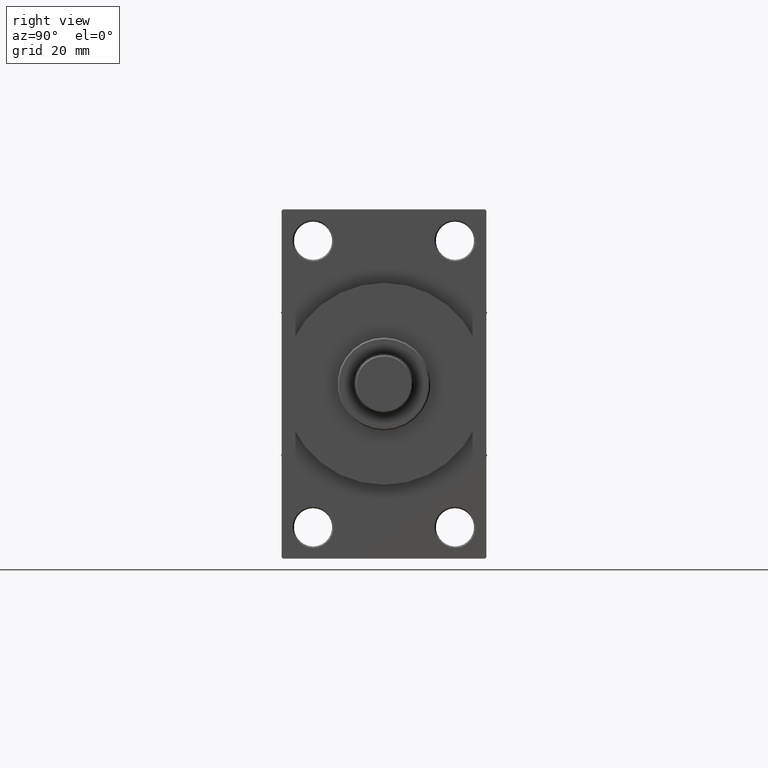
[diagram: clean part render]
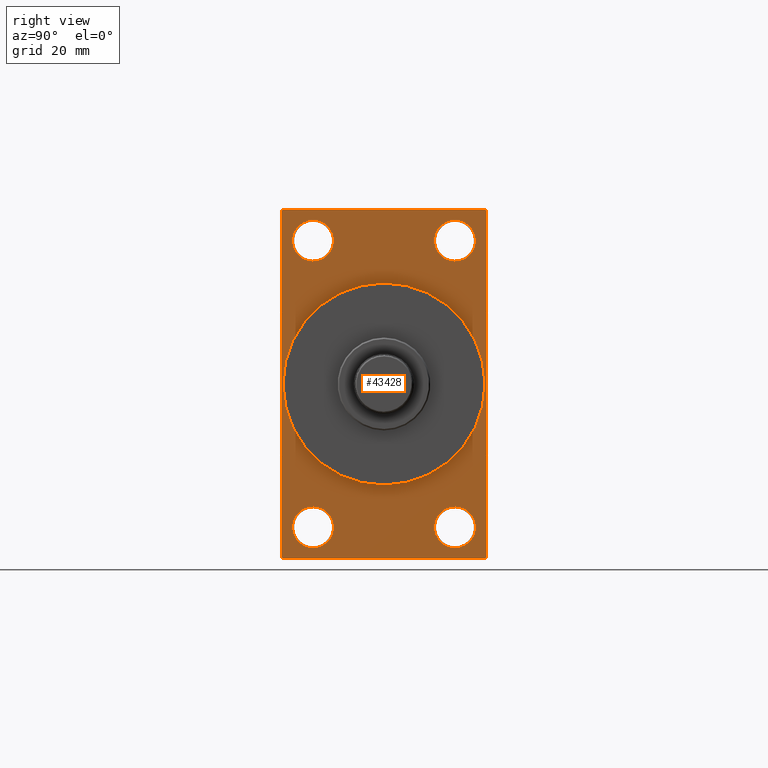
[diagram: same view with one face highlighted and labeled with its STEP entity id]
A machine part, right view. The second image highlights one B-rep face of the part: STEP entity #43428.
In plain terms, the highlighted planar face has unit normal (-1, 0, 0).
Its self-contained STEP definition (entity closure, byte-faithful):
#221 = DIRECTION ( 'NONE',  ( 0.000000000000000000, 0.000000000000000000, -1.000000000000000000 ) ) ;
#607 = ORIENTED_EDGE ( 'NONE', *, *, #24839, .T. ) ;
#777 = FACE_BOUND ( 'NONE', #45723, .T. ) ;
#983 = CARTESIAN_POINT ( 'NONE',  ( 138.0000000000000000, -25.99999999999999645, 44.99999999999999289 ) ) ;
#1010 = DIRECTION ( 'NONE',  ( -1.000000000000000000, 0.000000000000000000, -0.000000000000000000 ) ) ;
#1123 = VERTEX_POINT ( 'NONE', #1602 ) ;
#1602 = CARTESIAN_POINT ( 'NONE',  ( 138.0000000000000000, -37.49999999999999289, -63.49999999999997158 ) ) ;
#1700 = LINE ( 'NONE', #16366, #25528 ) ;
#1811 = AXIS2_PLACEMENT_3D ( 'NONE', #29979, #20075, #26359 ) ;
#2592 = VERTEX_POINT ( 'NONE', #46203 ) ;
#3135 = CARTESIAN_POINT ( 'NONE',  ( 138.0000000000000000, 26.00000000000000000, 44.99999999999998579 ) ) ;
#3863 = VERTEX_POINT ( 'NONE', #20117 ) ;
#4159 = DIRECTION ( 'NONE',  ( -1.000000000000000000, 0.000000000000000000, -0.000000000000000000 ) ) ;
#4589 = DIRECTION ( 'NONE',  ( -1.000000000000000000, 0.000000000000000000, -0.000000000000000000 ) ) ;
#4620 = FACE_BOUND ( 'NONE', #17722, .T. ) ;
#4820 = DIRECTION ( 'NONE',  ( 0.000000000000000000, 0.000000000000000000, 1.000000000000000000 ) ) ;
#5027 = EDGE_CURVE ( 'NONE', #14493, #10765, #33588, .T. ) ;
#5164 = EDGE_CURVE ( 'NONE', #11677, #41277, #12487, .T. ) ;
#5447 = EDGE_CURVE ( 'NONE', #22201, #14952, #34792, .T. ) ;
#5577 = AXIS2_PLACEMENT_3D ( 'NONE', #17533, #18001, #18234 ) ;
#5781 = DIRECTION ( 'NONE',  ( 1.000000000000000000, 0.000000000000000000, 0.000000000000000000 ) ) ;
#6313 = EDGE_CURVE ( 'NONE', #28808, #3863, #15475, .T. ) ;
#6964 = EDGE_CURVE ( 'NONE', #22556, #19406, #31011, .T. ) ;
#6974 = CARTESIAN_POINT ( 'NONE',  ( 138.0000000000000000, 37.49999999999999289, -63.50000000000001421 ) ) ;
#7454 = DIRECTION ( 'NONE',  ( -1.000000000000000000, 0.000000000000000000, -0.000000000000000000 ) ) ;
#7595 = CARTESIAN_POINT ( 'NONE',  ( 138.0000000000000000, 37.49999999999999289, -64.00000000000000000 ) ) ;
#8233 = DIRECTION ( 'NONE',  ( 0.000000000000000000, 0.7071067811865574537, -0.7071067811865376918 ) ) ;
#8318 = DIRECTION ( 'NONE',  ( 0.000000000000000000, -1.000000000000000000, -1.850371707708594563E-16 ) ) ;
#8567 = EDGE_CURVE ( 'NONE', #2592, #1123, #1700, .T. ) ;
#9165 = DIRECTION ( 'NONE',  ( -1.000000000000000000, 0.000000000000000000, -0.000000000000000000 ) ) ;
#9390 = CARTESIAN_POINT ( 'NONE',  ( 138.0000000000000000, -25.99999999999999645, -52.49999999999999289 ) ) ;
#9428 = VECTOR ( 'NONE', #8318, 1000.000000000000000 ) ;
#9458 = EDGE_CURVE ( 'NONE', #36237, #28808, #29335, .T. ) ;
#9522 = EDGE_CURVE ( 'NONE', #3863, #2592, #22113, .T. ) ;
#9545 = AXIS2_PLACEMENT_3D ( 'NONE', #33973, #1010, #15678 ) ;
#9769 = EDGE_CURVE ( 'NONE', #14493, #43563, #43884, .T. ) ;
#10056 = CARTESIAN_POINT ( 'NONE',  ( 138.0000000000000000, 36.99999999999997158, 63.99999999999998579 ) ) ;
#10438 = VERTEX_POINT ( 'NONE', #10929 ) ;
#10528 = CIRCLE ( 'NONE', #16661, 37.00000000000000000 ) ;
#10582 = DIRECTION ( 'NONE',  ( 0.000000000000000000, -0.7071067811865672237, 0.7071067811865279218 ) ) ;
#10753 = CARTESIAN_POINT ( 'NONE',  ( 138.0000000000000000, -25.99999999999999645, 60.00000000000000711 ) ) ;
#10765 = VERTEX_POINT ( 'NONE', #11827 ) ;
#10919 = CARTESIAN_POINT ( 'NONE',  ( 138.0000000000000000, 37.50000000000000000, 63.99999999999998579 ) ) ;
#10929 = CARTESIAN_POINT ( 'NONE',  ( 138.0000000000000000, 26.00000000000000000, -44.99999999999998579 ) ) ;
#10943 = EDGE_CURVE ( 'NONE', #41277, #11677, #41759, .T. ) ;
#11534 = ORIENTED_EDGE ( 'NONE', *, *, #5027, .F. ) ;
#11636 = DIRECTION ( 'NONE',  ( -0.000000000000000000, 0.7071067811865573427, 0.7071067811865378028 ) ) ;
#11677 = VERTEX_POINT ( 'NONE', #28397 ) ;
#11827 = CARTESIAN_POINT ( 'NONE',  ( 138.0000000000000000, -36.99999999999993605, -64.00000000000001421 ) ) ;
#11842 = LINE ( 'NONE', #23379, #31108 ) ;
#12004 = ORIENTED_EDGE ( 'NONE', *, *, #9769, .T. ) ;
#12487 = CIRCLE ( 'NONE', #29385, 7.500000000000007105 ) ;
#13953 = EDGE_CURVE ( 'NONE', #1123, #10765, #11842, .T. ) ;
#14140 = AXIS2_PLACEMENT_3D ( 'NONE', #29854, #4589, #4820 ) ;
#14493 = VERTEX_POINT ( 'NONE', #33336 ) ;
#14952 = VERTEX_POINT ( 'NONE', #39483 ) ;
#15191 = CIRCLE ( 'NONE', #32853, 7.500000000000007105 ) ;
#15237 = CARTESIAN_POINT ( 'NONE',  ( 138.0000000000000000, 37.49999999999999289, -63.50000000000001421 ) ) ;
#15442 = FACE_OUTER_BOUND ( 'NONE', #29246, .T. ) ;
#15475 = LINE ( 'NONE', #10919, #20209 ) ;
#15678 = DIRECTION ( 'NONE',  ( -0.000000000000000000, 0.000000000000000000, 1.000000000000000000 ) ) ;
#16366 = CARTESIAN_POINT ( 'NONE',  ( 138.0000000000000000, -37.49999999999999289, 63.99999999999997158 ) ) ;
#16661 = AXIS2_PLACEMENT_3D ( 'NONE', #20212, #5781, #46210 ) ;
#16855 = ORIENTED_EDGE ( 'NONE', *, *, #46832, .T. ) ;
#17098 = ORIENTED_EDGE ( 'NONE', *, *, #10943, .T. ) ;
#17533 = CARTESIAN_POINT ( 'NONE',  ( 138.0000000000000000, 0.000000000000000000, 0.000000000000000000 ) ) ;
#17722 = EDGE_LOOP ( 'NONE', ( #17098, #35555 ) ) ;
#18001 = DIRECTION ( 'NONE',  ( 1.000000000000000000, 0.000000000000000000, 0.000000000000000000 ) ) ;
#18234 = DIRECTION ( 'NONE',  ( 0.000000000000000000, 0.000000000000000000, -1.000000000000000000 ) ) ;
#18930 = ORIENTED_EDGE ( 'NONE', *, *, #33758, .T. ) ;
#18961 = CIRCLE ( 'NONE', #38934, 7.500000000000007105 ) ;
#19224 = AXIS2_PLACEMENT_3D ( 'NONE', #36570, #7454, #26458 ) ;
#19281 = PLANE ( 'NONE',  #9545 ) ;
#19355 = EDGE_LOOP ( 'NONE', ( #45741, #18930 ) ) ;
#19406 = VERTEX_POINT ( 'NONE', #10753 ) ;
#19410 = VECTOR ( 'NONE', #11636, 1000.000000000000000 ) ;
#19856 = EDGE_CURVE ( 'NONE', #14952, #22201, #10528, .T. ) ;
#20075 = DIRECTION ( 'NONE',  ( -1.000000000000000000, 0.000000000000000000, -0.000000000000000000 ) ) ;
#20117 = CARTESIAN_POINT ( 'NONE',  ( 138.0000000000000000, -36.99999999999995737, 63.99999999999997158 ) ) ;
#20209 = VECTOR ( 'NONE', #25592, 1000.000000000000000 ) ;
#20212 = CARTESIAN_POINT ( 'NONE',  ( 138.0000000000000000, 0.000000000000000000, 0.000000000000000000 ) ) ;
#21000 = AXIS2_PLACEMENT_3D ( 'NONE', #9390, #9165, #38512 ) ;
#21399 = DIRECTION ( 'NONE',  ( -0.000000000000000000, -0.7071067811865524577, -0.7071067811865426878 ) ) ;
#21542 = CARTESIAN_POINT ( 'NONE',  ( 138.0000000000000000, 37.50000000000000000, 63.99999999999998579 ) ) ;
#21633 = CARTESIAN_POINT ( 'NONE',  ( 138.0000000000000000, 36.99999999999997158, 63.99999999999998579 ) ) ;
#22113 = LINE ( 'NONE', #39700, #41722 ) ;
#22201 = VERTEX_POINT ( 'NONE', #43465 ) ;
#22522 = VECTOR ( 'NONE', #10582, 1000.000000000000000 ) ;
#22556 = VERTEX_POINT ( 'NONE', #983 ) ;
#22723 = EDGE_CURVE ( 'NONE', #34277, #10438, #18961, .T. ) ;
#23379 = CARTESIAN_POINT ( 'NONE',  ( 138.0000000000000000, -36.99999999999993605, -64.00000000000001421 ) ) ;
#23553 = ORIENTED_EDGE ( 'NONE', *, *, #9458, .T. ) ;
#24440 = CARTESIAN_POINT ( 'NONE',  ( 138.0000000000000000, 26.00000000000000000, -60.00000000000000000 ) ) ;
#24839 = EDGE_CURVE ( 'NONE', #43959, #33668, #15191, .T. ) ;
#25248 = ORIENTED_EDGE ( 'NONE', *, *, #5447, .F. ) ;
#25528 = VECTOR ( 'NONE', #221, 1000.000000000000000 ) ;
#25592 = DIRECTION ( 'NONE',  ( 0.000000000000000000, -1.000000000000000000, -1.850371707708594563E-16 ) ) ;
#25624 = CARTESIAN_POINT ( 'NONE',  ( 138.0000000000000000, 26.00000000000000000, 60.00000000000000000 ) ) ;
#26273 = FACE_BOUND ( 'NONE', #19355, .T. ) ;
#26359 = DIRECTION ( 'NONE',  ( 0.000000000000000000, 0.000000000000000000, 1.000000000000000000 ) ) ;
#26458 = DIRECTION ( 'NONE',  ( 0.000000000000000000, 0.000000000000000000, 1.000000000000000000 ) ) ;
#27235 = ORIENTED_EDGE ( 'NONE', *, *, #9522, .T. ) ;
#27871 = DIRECTION ( 'NONE',  ( -1.000000000000000000, 0.000000000000000000, -0.000000000000000000 ) ) ;
#28397 = CARTESIAN_POINT ( 'NONE',  ( 138.0000000000000000, -25.99999999999999645, -44.99999999999998579 ) ) ;
#28712 = ORIENTED_EDGE ( 'NONE', *, *, #13953, .T. ) ;
#28779 = LINE ( 'NONE', #21542, #29234 ) ;
#28808 = VERTEX_POINT ( 'NONE', #10056 ) ;
#28964 = CARTESIAN_POINT ( 'NONE',  ( 138.0000000000000000, -25.99999999999999645, -52.49999999999999289 ) ) ;
#29234 = VECTOR ( 'NONE', #47065, 1000.000000000000000 ) ;
#29246 = EDGE_LOOP ( 'NONE', ( #29578, #28712, #11534, #12004, #39361, #23553, #29278, #27235 ) ) ;
#29278 = ORIENTED_EDGE ( 'NONE', *, *, #6313, .T. ) ;
#29335 = LINE ( 'NONE', #21633, #22522 ) ;
#29385 = AXIS2_PLACEMENT_3D ( 'NONE', #28964, #32344, #43643 ) ;
#29420 = DIRECTION ( 'NONE',  ( 0.000000000000000000, 0.000000000000000000, 1.000000000000000000 ) ) ;
#29578 = ORIENTED_EDGE ( 'NONE', *, *, #8567, .T. ) ;
#29854 = CARTESIAN_POINT ( 'NONE',  ( 138.0000000000000000, 26.00000000000000000, 52.49999999999999289 ) ) ;
#29979 = CARTESIAN_POINT ( 'NONE',  ( 138.0000000000000000, -25.99999999999999645, 52.50000000000000000 ) ) ;
#30298 = CARTESIAN_POINT ( 'NONE',  ( 138.0000000000000000, 37.50000000000000000, 63.49999999999998579 ) ) ;
#31011 = CIRCLE ( 'NONE', #1811, 7.500000000000007105 ) ;
#31108 = VECTOR ( 'NONE', #8233, 999.9999999999998863 ) ;
#31539 = CIRCLE ( 'NONE', #19224, 7.500000000000007105 ) ;
#32344 = DIRECTION ( 'NONE',  ( -1.000000000000000000, 0.000000000000000000, -0.000000000000000000 ) ) ;
#32853 = AXIS2_PLACEMENT_3D ( 'NONE', #37119, #4159, #29420 ) ;
#33336 = CARTESIAN_POINT ( 'NONE',  ( 138.0000000000000000, 36.99999999999999289, -64.00000000000000000 ) ) ;
#33470 = ORIENTED_EDGE ( 'NONE', *, *, #34024, .T. ) ;
#33588 = LINE ( 'NONE', #7595, #9428 ) ;
#33668 = VERTEX_POINT ( 'NONE', #3135 ) ;
#33758 = EDGE_CURVE ( 'NONE', #10438, #34277, #31539, .T. ) ;
#33918 = CARTESIAN_POINT ( 'NONE',  ( 138.0000000000000000, -25.99999999999999645, 52.50000000000000000 ) ) ;
#33973 = CARTESIAN_POINT ( 'NONE',  ( 138.0000000000000000, 0.000000000000000000, 0.000000000000000000 ) ) ;
#34024 = EDGE_CURVE ( 'NONE', #19406, #22556, #46895, .T. ) ;
#34049 = ORIENTED_EDGE ( 'NONE', *, *, #19856, .F. ) ;
#34277 = VERTEX_POINT ( 'NONE', #24440 ) ;
#34358 = EDGE_CURVE ( 'NONE', #36237, #43563, #28779, .T. ) ;
#34394 = CARTESIAN_POINT ( 'NONE',  ( 138.0000000000000000, -25.99999999999999645, -60.00000000000000000 ) ) ;
#34792 = CIRCLE ( 'NONE', #5577, 37.00000000000000000 ) ;
#34896 = CIRCLE ( 'NONE', #14140, 7.500000000000007105 ) ;
#35555 = ORIENTED_EDGE ( 'NONE', *, *, #5164, .T. ) ;
#36237 = VERTEX_POINT ( 'NONE', #30298 ) ;
#36570 = CARTESIAN_POINT ( 'NONE',  ( 138.0000000000000000, 26.00000000000000000, -52.49999999999999289 ) ) ;
#37119 = CARTESIAN_POINT ( 'NONE',  ( 138.0000000000000000, 26.00000000000000000, 52.49999999999999289 ) ) ;
#37585 = FACE_BOUND ( 'NONE', #43887, .T. ) ;
#38512 = DIRECTION ( 'NONE',  ( 0.000000000000000000, 0.000000000000000000, 1.000000000000000000 ) ) ;
#38934 = AXIS2_PLACEMENT_3D ( 'NONE', #39686, #46196, #43290 ) ;
#39361 = ORIENTED_EDGE ( 'NONE', *, *, #34358, .F. ) ;
#39426 = DIRECTION ( 'NONE',  ( 0.000000000000000000, 0.000000000000000000, 1.000000000000000000 ) ) ;
#39483 = CARTESIAN_POINT ( 'NONE',  ( 138.0000000000000000, 4.531193156845206793E-15, -37.00000000000000000 ) ) ;
#39686 = CARTESIAN_POINT ( 'NONE',  ( 138.0000000000000000, 26.00000000000000000, -52.49999999999999289 ) ) ;
#39700 = CARTESIAN_POINT ( 'NONE',  ( 138.0000000000000000, -37.49999999999999289, 63.49999999999994316 ) ) ;
#40961 = FACE_BOUND ( 'NONE', #43672, .T. ) ;
#41277 = VERTEX_POINT ( 'NONE', #34394 ) ;
#41722 = VECTOR ( 'NONE', #21399, 1000.000000000000000 ) ;
#41759 = CIRCLE ( 'NONE', #21000, 7.500000000000007105 ) ;
#42246 = ORIENTED_EDGE ( 'NONE', *, *, #6964, .T. ) ;
#42279 = AXIS2_PLACEMENT_3D ( 'NONE', #33918, #27871, #39426 ) ;
#43290 = DIRECTION ( 'NONE',  ( 0.000000000000000000, 0.000000000000000000, 1.000000000000000000 ) ) ;
#43428 = ADVANCED_FACE ( 'NONE', ( #37585, #4620, #26273, #777, #40961, #15442 ), #19281, .F. ) ;
#43465 = CARTESIAN_POINT ( 'NONE',  ( 138.0000000000000000, 0.000000000000000000, 37.00000000000000000 ) ) ;
#43563 = VERTEX_POINT ( 'NONE', #6974 ) ;
#43643 = DIRECTION ( 'NONE',  ( 0.000000000000000000, 0.000000000000000000, 1.000000000000000000 ) ) ;
#43672 = EDGE_LOOP ( 'NONE', ( #25248, #34049 ) ) ;
#43884 = LINE ( 'NONE', #15237, #19410 ) ;
#43887 = EDGE_LOOP ( 'NONE', ( #42246, #33470 ) ) ;
#43959 = VERTEX_POINT ( 'NONE', #25624 ) ;
#45723 = EDGE_LOOP ( 'NONE', ( #16855, #607 ) ) ;
#45741 = ORIENTED_EDGE ( 'NONE', *, *, #22723, .T. ) ;
#46196 = DIRECTION ( 'NONE',  ( -1.000000000000000000, 0.000000000000000000, -0.000000000000000000 ) ) ;
#46203 = CARTESIAN_POINT ( 'NONE',  ( 138.0000000000000000, -37.49999999999999289, 63.49999999999994316 ) ) ;
#46210 = DIRECTION ( 'NONE',  ( 0.000000000000000000, 0.000000000000000000, -1.000000000000000000 ) ) ;
#46832 = EDGE_CURVE ( 'NONE', #33668, #43959, #34896, .T. ) ;
#46895 = CIRCLE ( 'NONE', #42279, 7.500000000000007105 ) ;
#47065 = DIRECTION ( 'NONE',  ( 0.000000000000000000, -5.421010862427522170E-17, -1.000000000000000000 ) ) ;